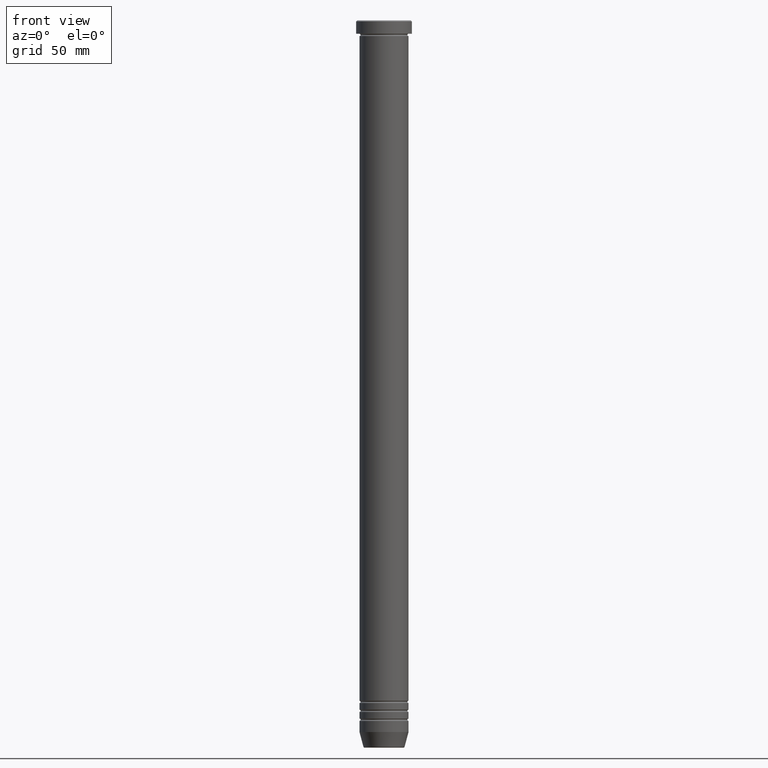
[diagram: clean part render]
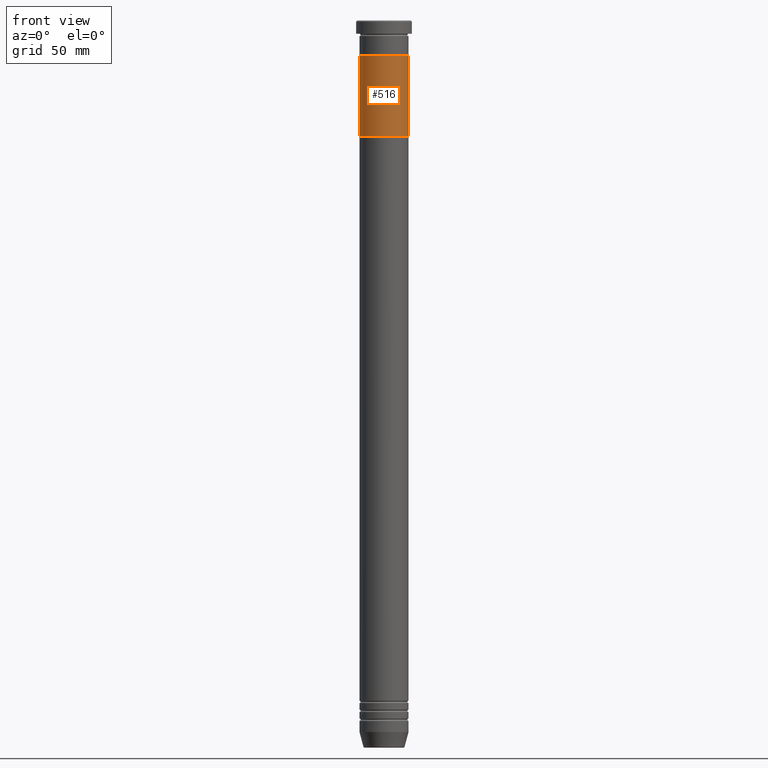
[diagram: same view with one face highlighted and labeled with its STEP entity id]
A machine part, front view. The second image highlights one B-rep face of the part: STEP entity #516.
In plain terms, the highlighted cylindrical surface (edge-blend (fillet) strip) has radius 11 mm, axis along (-0, -0, 1).
Its self-contained STEP definition (entity closure, byte-faithful):
#138 = VERTEX_POINT ( 'NONE', #1001 ) ;
#162 = CARTESIAN_POINT ( 'NONE',  ( -11.00000000000000000, 1.347111479062088405E-15, -52.00000000000000000 ) ) ;
#171 = DIRECTION ( 'NONE',  ( -0.000000000000000000, -0.000000000000000000, 1.000000000000000000 ) ) ;
#182 = ORIENTED_EDGE ( 'NONE', *, *, #677, .F. ) ;
#202 = ORIENTED_EDGE ( 'NONE', *, *, #839, .T. ) ;
#208 = FACE_OUTER_BOUND ( 'NONE', #933, .T. ) ;
#233 = AXIS2_PLACEMENT_3D ( 'NONE', #930, #557, #904 ) ;
#260 = VERTEX_POINT ( 'NONE', #696 ) ;
#265 = CARTESIAN_POINT ( 'NONE',  ( 0.000000000000000000, 0.000000000000000000, -16.00000000000000000 ) ) ;
#279 = LINE ( 'NONE', #964, #543 ) ;
#348 = CIRCLE ( 'NONE', #523, 11.00000000000000000 ) ;
#355 = LINE ( 'NONE', #359, #474 ) ;
#359 = CARTESIAN_POINT ( 'NONE',  ( -11.00000000000000000, 1.347111479062088405E-15, -52.00000000000000000 ) ) ;
#424 = ORIENTED_EDGE ( 'NONE', *, *, #639, .T. ) ;
#474 = VECTOR ( 'NONE', #697, 1000.000000000000000 ) ;
#516 = ADVANCED_FACE ( 'NONE', ( #208 ), #711, .T. ) ;
#523 = AXIS2_PLACEMENT_3D ( 'NONE', #265, #530, #878 ) ;
#527 = VERTEX_POINT ( 'NONE', #162 ) ;
#530 = DIRECTION ( 'NONE',  ( 0.000000000000000000, 0.000000000000000000, -1.000000000000000000 ) ) ;
#543 = VECTOR ( 'NONE', #171, 1000.000000000000000 ) ;
#557 = DIRECTION ( 'NONE',  ( -0.000000000000000000, -0.000000000000000000, 1.000000000000000000 ) ) ;
#591 = ORIENTED_EDGE ( 'NONE', *, *, #1034, .F. ) ;
#631 = VERTEX_POINT ( 'NONE', #676 ) ;
#639 = EDGE_CURVE ( 'NONE', #138, #260, #279, .T. ) ;
#677 = EDGE_CURVE ( 'NONE', #527, #631, #355, .T. ) ;
#676 = CARTESIAN_POINT ( 'NONE',  ( -11.00000000000000000, 1.347111479062088405E-15, -16.00000000000000000 ) ) ;
#696 = CARTESIAN_POINT ( 'NONE',  ( 11.00000000000000000, 0.000000000000000000, -16.00000000000000000 ) ) ;
#697 = DIRECTION ( 'NONE',  ( -0.000000000000000000, -0.000000000000000000, 1.000000000000000000 ) ) ;
#711 = CYLINDRICAL_SURFACE ( 'NONE', #233, 11.00000000000000000 ) ;
#814 = DIRECTION ( 'NONE',  ( -1.000000000000000000, 0.000000000000000000, 0.000000000000000000 ) ) ;
#839 = EDGE_CURVE ( 'NONE', #260, #631, #348, .T. ) ;
#878 = DIRECTION ( 'NONE',  ( -1.000000000000000000, 0.000000000000000000, 0.000000000000000000 ) ) ;
#890 = AXIS2_PLACEMENT_3D ( 'NONE', #902, #996, #814 ) ;
#902 = CARTESIAN_POINT ( 'NONE',  ( 0.000000000000000000, 0.000000000000000000, -52.00000000000000000 ) ) ;
#904 = DIRECTION ( 'NONE',  ( 1.000000000000000000, 0.000000000000000000, 0.000000000000000000 ) ) ;
#930 = CARTESIAN_POINT ( 'NONE',  ( 0.000000000000000000, 0.000000000000000000, -52.00000000000000000 ) ) ;
#933 = EDGE_LOOP ( 'NONE', ( #182, #591, #424, #202 ) ) ;
#964 = CARTESIAN_POINT ( 'NONE',  ( 11.00000000000000000, 0.000000000000000000, -52.00000000000000000 ) ) ;
#996 = DIRECTION ( 'NONE',  ( 0.000000000000000000, 0.000000000000000000, -1.000000000000000000 ) ) ;
#1001 = CARTESIAN_POINT ( 'NONE',  ( 11.00000000000000000, 0.000000000000000000, -52.00000000000000000 ) ) ;
#1034 = EDGE_CURVE ( 'NONE', #138, #527, #1109, .T. ) ;
#1109 = CIRCLE ( 'NONE', #890, 11.00000000000000000 ) ;